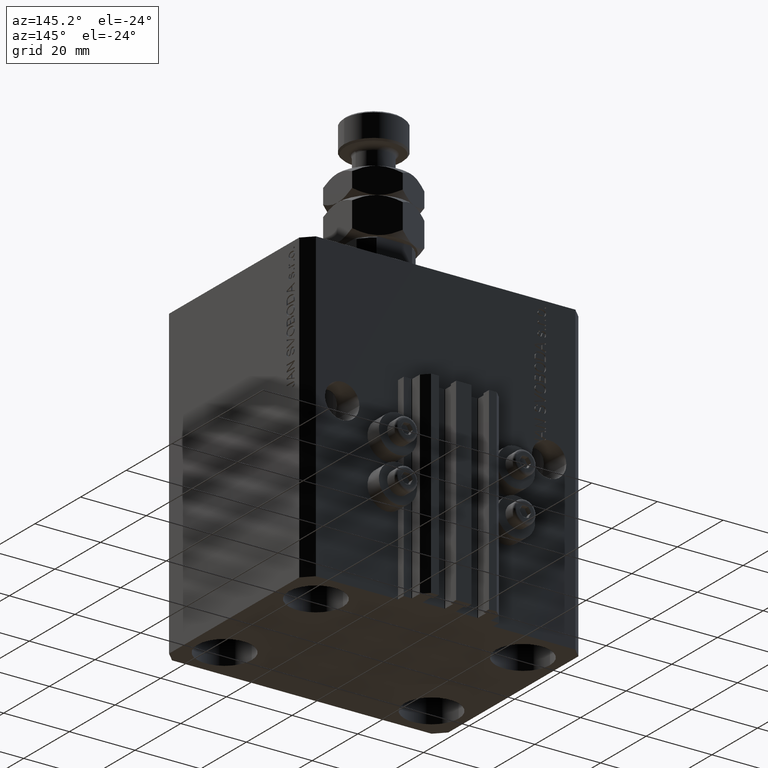
[diagram: clean part render]
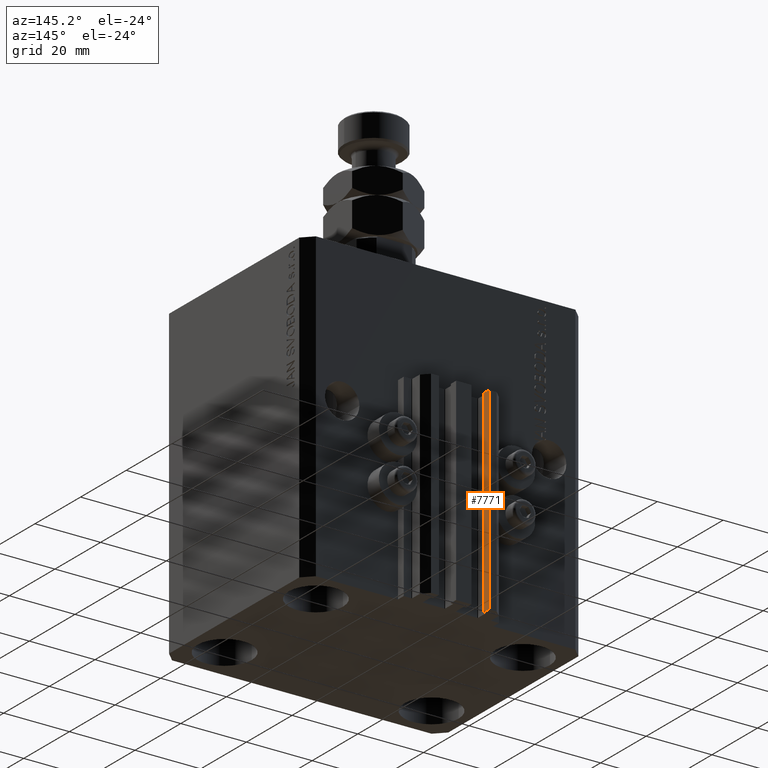
[diagram: same view with one face highlighted and labeled with its STEP entity id]
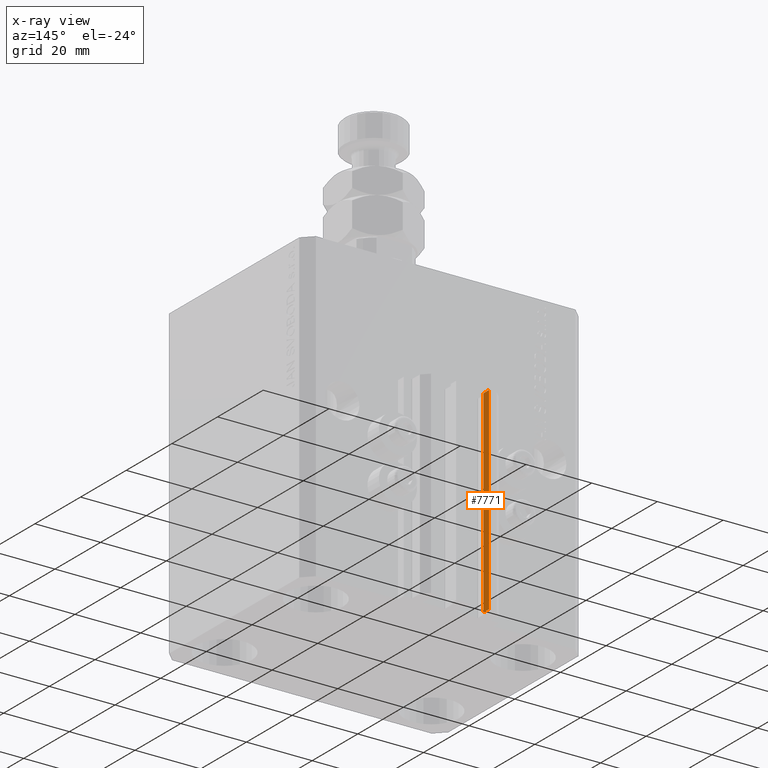
[diagram: x-ray of the same camera — body ghosted, the highlighted face saturated]
A machine part, auxiliary view. The second image highlights one B-rep face of the part: STEP entity #7771.
The next image is the same camera in x-ray: the body ghosted, the highlighted face saturated — about 0% of this face is hidden behind the body in this view.
In plain terms, the highlighted planar face has unit normal (1, 0, 0).
Its self-contained STEP definition (entity closure, byte-faithful):
#416 = EDGE_CURVE ( 'NONE', #1796, #1681, #2527, .T. ) ;
#1681 = VERTEX_POINT ( 'NONE', #13441 ) ;
#1796 = VERTEX_POINT ( 'NONE', #37099 ) ;
#2527 = LINE ( 'NONE', #31656, #3789 ) ;
#3789 = VECTOR ( 'NONE', #46865, 1000.000000000000000 ) ;
#7771 = ADVANCED_FACE ( 'NONE', ( #28469 ), #9791, .T. ) ;
#8629 = EDGE_CURVE ( 'NONE', #27226, #1681, #32198, .T. ) ;
#9791 = PLANE ( 'NONE',  #16625 ) ;
#13350 = EDGE_LOOP ( 'NONE', ( #18098, #42004, #19714, #20061 ) ) ;
#13441 = CARTESIAN_POINT ( 'NONE',  ( -7.650000000000002132, 39.49999999999999289, -33.00000000000000000 ) ) ;
#14013 = DIRECTION ( 'NONE',  ( 1.000000000000000000, 0.000000000000000000, 0.000000000000000000 ) ) ;
#14059 = DIRECTION ( 'NONE',  ( 0.000000000000000000, 0.000000000000000000, 1.000000000000000000 ) ) ;
#15105 = VERTEX_POINT ( 'NONE', #31837 ) ;
#16625 = AXIS2_PLACEMENT_3D ( 'NONE', #20732, #14013, #21225 ) ;
#18098 = ORIENTED_EDGE ( 'NONE', *, *, #416, .F. ) ;
#18548 = CARTESIAN_POINT ( 'NONE',  ( -7.650000000000002132, 37.09999999999999432, -93.00000000000000000 ) ) ;
#19714 = ORIENTED_EDGE ( 'NONE', *, *, #24636, .T. ) ;
#20061 = ORIENTED_EDGE ( 'NONE', *, *, #8629, .T. ) ;
#20732 = CARTESIAN_POINT ( 'NONE',  ( -7.650000000000002132, 37.09999999999999432, -93.00000000000000000 ) ) ;
#21225 = DIRECTION ( 'NONE',  ( 0.000000000000000000, 0.000000000000000000, -1.000000000000000000 ) ) ;
#23024 = VECTOR ( 'NONE', #25218, 1000.000000000000000 ) ;
#24636 = EDGE_CURVE ( 'NONE', #15105, #27226, #37464, .T. ) ;
#24693 = EDGE_CURVE ( 'NONE', #15105, #1796, #32994, .T. ) ;
#25218 = DIRECTION ( 'NONE',  ( 0.000000000000000000, 0.000000000000000000, 1.000000000000000000 ) ) ;
#25879 = VECTOR ( 'NONE', #14059, 1000.000000000000000 ) ;
#27226 = VERTEX_POINT ( 'NONE', #34424 ) ;
#28469 = FACE_OUTER_BOUND ( 'NONE', #13350, .T. ) ;
#31656 = CARTESIAN_POINT ( 'NONE',  ( -7.650000000000002132, 37.09999999999999432, -33.00000000000000000 ) ) ;
#31837 = CARTESIAN_POINT ( 'NONE',  ( -7.650000000000002132, 37.09999999999999432, -93.00000000000000000 ) ) ;
#32198 = LINE ( 'NONE', #36188, #23024 ) ;
#32994 = LINE ( 'NONE', #48188, #25879 ) ;
#34424 = CARTESIAN_POINT ( 'NONE',  ( -7.650000000000002132, 39.49999999999999289, -93.00000000000000000 ) ) ;
#36188 = CARTESIAN_POINT ( 'NONE',  ( -7.650000000000002132, 39.49999999999999289, -93.00000000000000000 ) ) ;
#37099 = CARTESIAN_POINT ( 'NONE',  ( -7.650000000000002132, 37.09999999999999432, -33.00000000000000000 ) ) ;
#37464 = LINE ( 'NONE', #18548, #37774 ) ;
#37774 = VECTOR ( 'NONE', #40720, 1000.000000000000000 ) ;
#40720 = DIRECTION ( 'NONE',  ( 0.000000000000000000, 1.000000000000000000, 0.000000000000000000 ) ) ;
#42004 = ORIENTED_EDGE ( 'NONE', *, *, #24693, .F. ) ;
#46865 = DIRECTION ( 'NONE',  ( 0.000000000000000000, 1.000000000000000000, 0.000000000000000000 ) ) ;
#48188 = CARTESIAN_POINT ( 'NONE',  ( -7.650000000000002132, 37.09999999999999432, -93.00000000000000000 ) ) ;